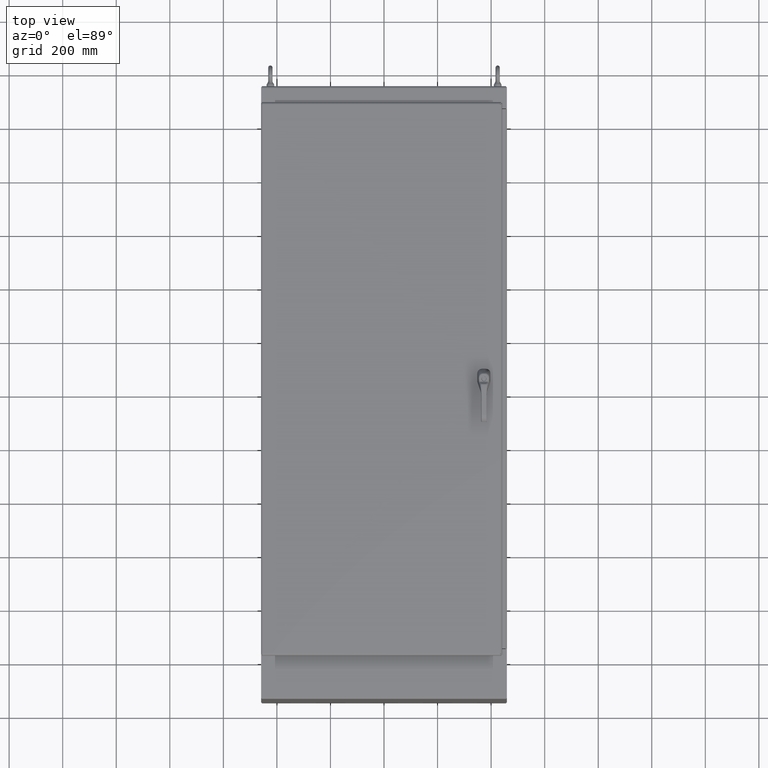
[diagram: clean part render]
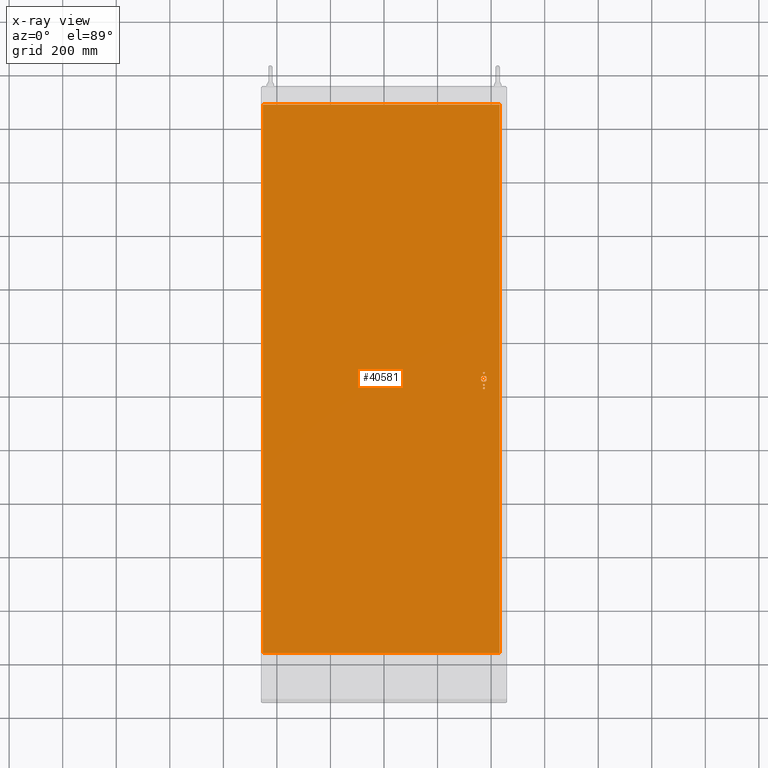
[diagram: x-ray — body ghosted, one internal face saturated and labeled with its STEP entity id]
A machine part, top view, then the same camera in x-ray: the body is ghosted and one INTERNAL B-rep face — a face not visible from any outside direction — is saturated and labeled: STEP entity #40581.
In plain terms, the highlighted planar face has unit normal (-0, 0, 1).
Its self-contained STEP definition (entity closure, byte-faithful):
#1869=FACE_BOUND('',#8251,.T.);
#1870=FACE_BOUND('',#8252,.T.);
#1871=FACE_BOUND('',#8253,.T.);
#1872=FACE_BOUND('',#8254,.T.);
#2115=CIRCLE('',#44138,0.1405);
#2117=CIRCLE('',#44141,0.1405);
#2119=CIRCLE('',#44144,0.1405);
#2121=CIRCLE('',#44147,0.453);
#2123=CIRCLE('',#44151,0.453);
#2125=CIRCLE('',#44155,0.453);
#2127=CIRCLE('',#44159,0.453);
#5716=FACE_OUTER_BOUND('',#8250,.T.);
#8250=EDGE_LOOP('',(#27635,#27636,#27637,#27638));
#8251=EDGE_LOOP('',(#27639));
#8252=EDGE_LOOP('',(#27640));
#8253=EDGE_LOOP('',(#27641));
#8254=EDGE_LOOP('',(#27642,#27643,#27644,#27645,#27646,#27647,#27648,#27649));
#11131=LINE('',#62742,#14086);
#11135=LINE('',#62754,#14090);
#11139=LINE('',#62766,#14094);
#11142=LINE('',#62775,#14097);
#11146=LINE('',#62892,#14101);
#11150=LINE('',#62992,#14105);
#11154=LINE('',#63095,#14109);
#11158=LINE('',#63193,#14113);
#14086=VECTOR('',#49879,0.393700787401575);
#14090=VECTOR('',#49891,0.393700787401575);
#14094=VECTOR('',#49903,0.393700787401575);
#14097=VECTOR('',#49914,0.393700787401575);
#14101=VECTOR('',#49924,0.393700787401575);
#14105=VECTOR('',#49932,0.393700787401575);
#14109=VECTOR('',#49940,0.393700787401575);
#14113=VECTOR('',#49950,0.393700787401575);
#16912=VERTEX_POINT('',#62713);
#16914=VERTEX_POINT('',#62719);
#16916=VERTEX_POINT('',#62725);
#16919=VERTEX_POINT('',#62732);
#16920=VERTEX_POINT('',#62734);
#16922=VERTEX_POINT('',#62740);
#16924=VERTEX_POINT('',#62746);
#16926=VERTEX_POINT('',#62752);
#16928=VERTEX_POINT('',#62758);
#16930=VERTEX_POINT('',#62764);
#16932=VERTEX_POINT('',#62770);
#16934=VERTEX_POINT('',#62803);
#16936=VERTEX_POINT('',#62891);
#16940=VERTEX_POINT('',#62985);
#16944=VERTEX_POINT('',#63084);
#20890=EDGE_CURVE('',#16912,#16912,#2115,.T.);
#20893=EDGE_CURVE('',#16914,#16914,#2117,.T.);
#20896=EDGE_CURVE('',#16916,#16916,#2119,.T.);
#20899=EDGE_CURVE('',#16920,#16919,#2121,.T.);
#20903=EDGE_CURVE('',#16919,#16922,#11131,.T.);
#20906=EDGE_CURVE('',#16922,#16924,#2123,.T.);
#20909=EDGE_CURVE('',#16924,#16926,#11135,.T.);
#20912=EDGE_CURVE('',#16926,#16928,#2125,.T.);
#20915=EDGE_CURVE('',#16928,#16930,#11139,.T.);
#20918=EDGE_CURVE('',#16930,#16932,#2127,.T.);
#20920=EDGE_CURVE('',#16932,#16920,#11142,.T.);
#20929=EDGE_CURVE('',#16936,#16934,#11146,.T.);
#20939=EDGE_CURVE('',#16934,#16940,#11150,.T.);
#20948=EDGE_CURVE('',#16940,#16944,#11154,.T.);
#20957=EDGE_CURVE('',#16944,#16936,#11158,.T.);
#27635=ORIENTED_EDGE('',*,*,#20939,.T.);
#27636=ORIENTED_EDGE('',*,*,#20948,.T.);
#27637=ORIENTED_EDGE('',*,*,#20957,.T.);
#27638=ORIENTED_EDGE('',*,*,#20929,.T.);
#27639=ORIENTED_EDGE('',*,*,#20890,.T.);
#27640=ORIENTED_EDGE('',*,*,#20893,.T.);
#27641=ORIENTED_EDGE('',*,*,#20896,.T.);
#27642=ORIENTED_EDGE('',*,*,#20899,.T.);
#27643=ORIENTED_EDGE('',*,*,#20903,.T.);
#27644=ORIENTED_EDGE('',*,*,#20906,.T.);
#27645=ORIENTED_EDGE('',*,*,#20909,.T.);
#27646=ORIENTED_EDGE('',*,*,#20912,.T.);
#27647=ORIENTED_EDGE('',*,*,#20915,.T.);
#27648=ORIENTED_EDGE('',*,*,#20918,.T.);
#27649=ORIENTED_EDGE('',*,*,#20920,.T.);
#38897=PLANE('',#44170);
#40581=ADVANCED_FACE('',(#5716,#1869,#1870,#1871,#1872),#38897,.F.);
#44138=AXIS2_PLACEMENT_3D('',#62715,#49851,#49852);
#44141=AXIS2_PLACEMENT_3D('',#62721,#49858,#49859);
#44144=AXIS2_PLACEMENT_3D('',#62727,#49865,#49866);
#44147=AXIS2_PLACEMENT_3D('',#62735,#49872,#49873);
#44151=AXIS2_PLACEMENT_3D('',#62748,#49885,#49886);
#44155=AXIS2_PLACEMENT_3D('',#62760,#49897,#49898);
#44159=AXIS2_PLACEMENT_3D('',#62772,#49909,#49910);
#44170=AXIS2_PLACEMENT_3D('',#63192,#49948,#49949);
#49851=DIRECTION('center_axis',(0.,0.,1.));
#49852=DIRECTION('ref_axis',(-1.,0.,0.));
#49858=DIRECTION('center_axis',(0.,0.,1.));
#49859=DIRECTION('ref_axis',(-1.,0.,0.));
#49865=DIRECTION('center_axis',(0.,0.,1.));
#49866=DIRECTION('ref_axis',(-1.,0.,0.));
#49872=DIRECTION('center_axis',(0.,0.,1.));
#49873=DIRECTION('ref_axis',(-0.883002207505519,-0.469368833158296,0.));
#49879=DIRECTION('',(1.,0.,0.));
#49885=DIRECTION('center_axis',(0.,0.,1.));
#49886=DIRECTION('ref_axis',(0.469368833158296,-0.883002207505519,0.));
#49891=DIRECTION('',(0.,1.,0.));
#49897=DIRECTION('center_axis',(0.,0.,1.));
#49898=DIRECTION('ref_axis',(0.883002207505519,0.469368833158297,0.));
#49903=DIRECTION('',(-1.,2.055720481263E-16,0.));
#49909=DIRECTION('center_axis',(0.,0.,1.));
#49910=DIRECTION('ref_axis',(-0.469368833158297,0.883002207505518,0.));
#49914=DIRECTION('',(4.11144096252601E-16,-1.,0.));
#49924=DIRECTION('',(-1.,0.,0.));
#49932=DIRECTION('',(6.93570442811114E-17,1.,0.));
#49940=DIRECTION('',(1.,4.78415040491206E-16,0.));
#49948=DIRECTION('center_axis',(0.,0.,1.));
#49949=DIRECTION('ref_axis',(1.,0.,0.));
#49950=DIRECTION('',(6.93570442811114E-17,-1.,0.));
#62713=CARTESIAN_POINT('',(15.17175,-1.37699999999999,0.));
#62715=CARTESIAN_POINT('Origin',(15.03125,-1.37699999999999,0.));
#62719=CARTESIAN_POINT('',(15.17175,0.885000000000006,0.));
#62721=CARTESIAN_POINT('Origin',(15.03125,0.885000000000006,0.));
#62725=CARTESIAN_POINT('',(15.17175,-0.884999999999994,0.));
#62727=CARTESIAN_POINT('Origin',(15.03125,-0.884999999999994,0.));
#62732=CARTESIAN_POINT('',(14.8186259185793,-0.399999999999994,0.));
#62734=CARTESIAN_POINT('',(14.63125,-0.212624081420703,0.));
#62735=CARTESIAN_POINT('Origin',(15.03125,5.59482469102441E-15,0.));
#62740=CARTESIAN_POINT('',(15.2438740814207,-0.399999999999994,0.));
#62742=CARTESIAN_POINT('',(7.62193704071035,-0.399999999999994,0.));
#62746=CARTESIAN_POINT('',(15.43125,-0.212624081420703,0.));
#62748=CARTESIAN_POINT('Origin',(15.03125,5.59482469102441E-15,0.));
#62752=CARTESIAN_POINT('',(15.43125,0.212624081420714,0.));
#62754=CARTESIAN_POINT('',(15.43125,0.106312040710353,0.));
#62758=CARTESIAN_POINT('',(15.2438740814207,0.400000000000005,0.));
#62760=CARTESIAN_POINT('Origin',(15.03125,5.59482469102441E-15,0.));
#62764=CARTESIAN_POINT('',(14.8186259185793,0.400000000000005,0.));
#62766=CARTESIAN_POINT('',(7.40931295928965,0.400000000000007,0.));
#62770=CARTESIAN_POINT('',(14.63125,0.212624081420714,0.));
#62772=CARTESIAN_POINT('Origin',(15.03125,5.59482469102441E-15,0.));
#62775=CARTESIAN_POINT('',(14.63125,-0.106312040710352,0.));
#62803=CARTESIAN_POINT('',(-17.474125,-40.3335,0.));
#62891=CARTESIAN_POINT('',(17.36475,-40.3335,0.));
#62892=CARTESIAN_POINT('',(-8.859375,-40.3335,0.));
#62985=CARTESIAN_POINT('',(-17.474125,40.3335,0.));
#62992=CARTESIAN_POINT('',(-17.474125,20.16675,0.));
#63084=CARTESIAN_POINT('',(17.36475,40.3335,0.));
#63095=CARTESIAN_POINT('',(8.68237499999999,40.3335,0.));
#63192=CARTESIAN_POINT('Origin',(2.79741234551221E-15,-8.37366381871656E-15,
0.));
#63193=CARTESIAN_POINT('',(17.36475,-20.16675,0.));